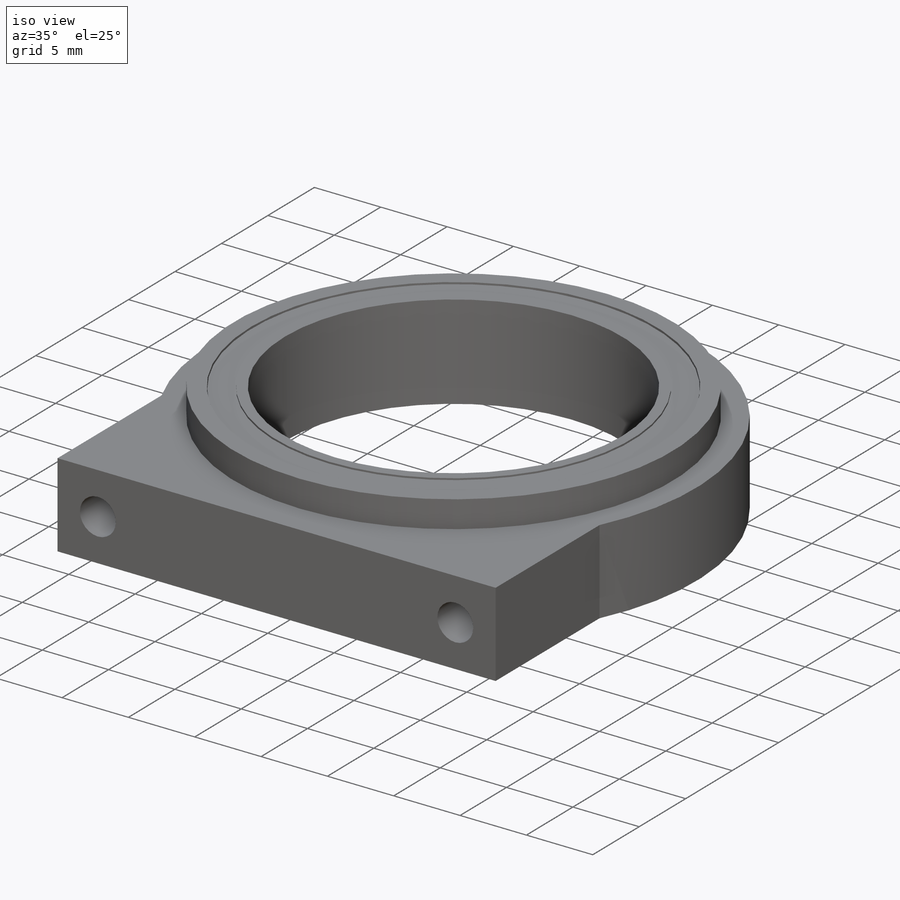
[diagram: iso view]
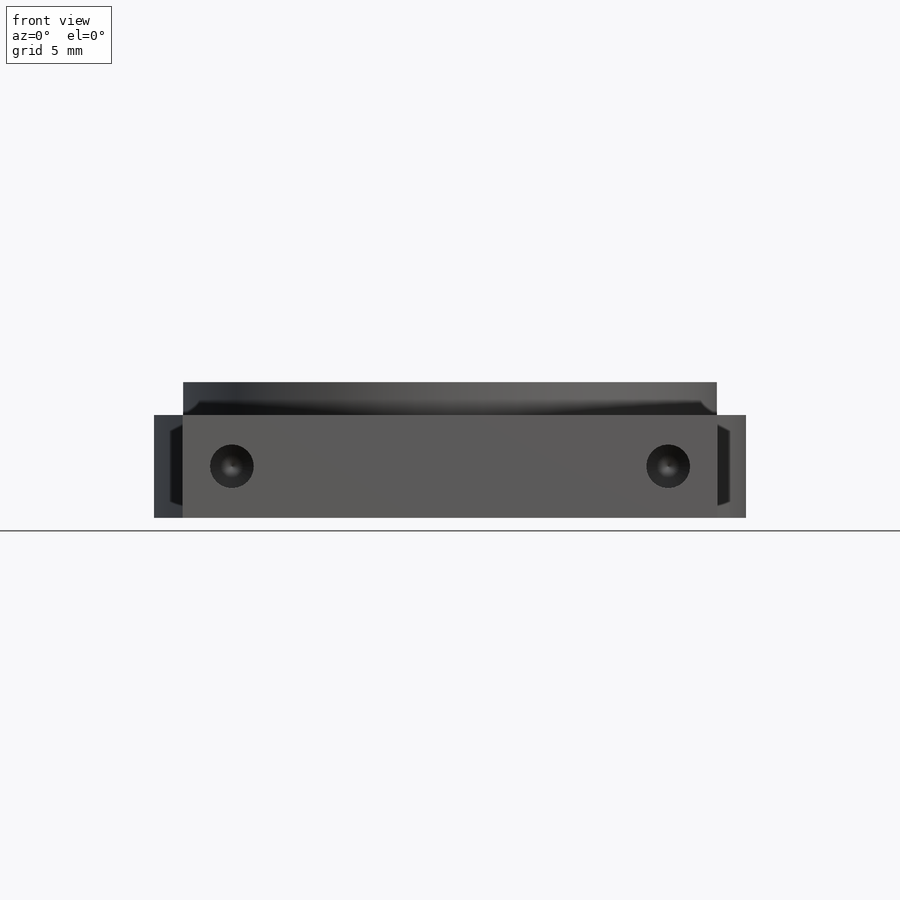
[diagram: front view]
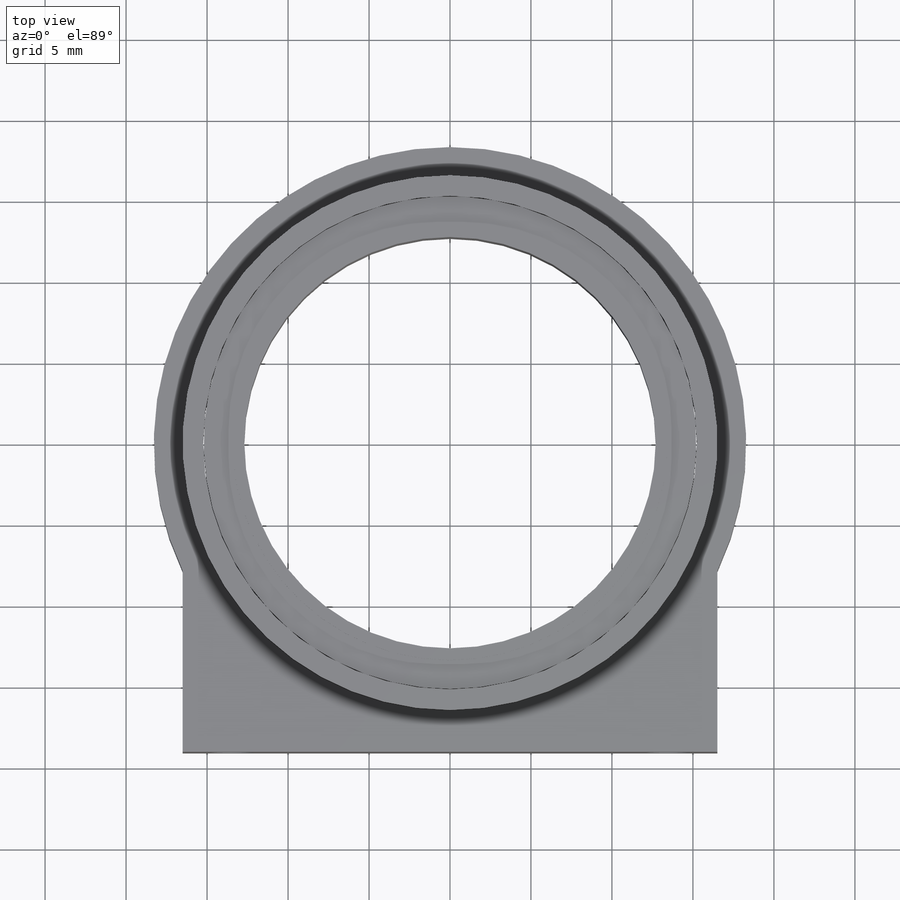
[diagram: top view]
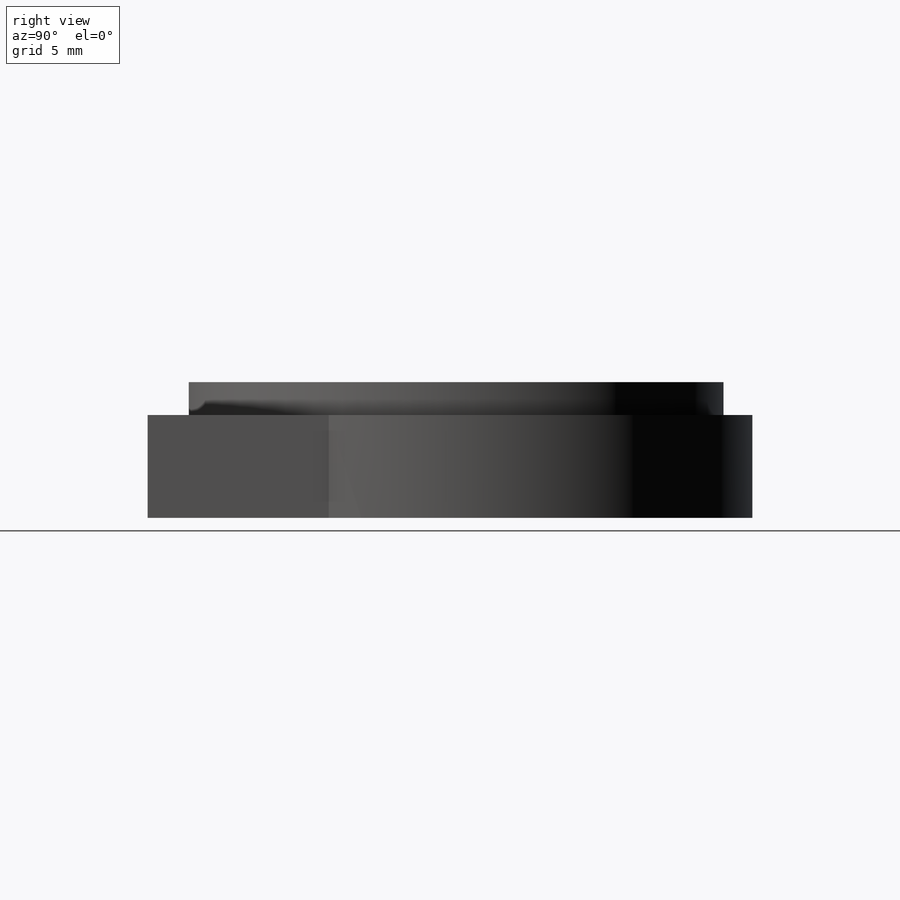
[diagram: right view]
SOLIDWORKS PART (.sldprt)
format: sldprt  version: not decoded by parser v0  size: 302,592 bytes
history: native  units: mm
features: sketch x8, extrude x4, thread x2, material x1, cut_extrude x1, hole x1 (+13 scaffold rows collapsed)
feature tree (30):
  scaffold x13  (default folders/planes/origin — collapsed)
  material  "1060 Alloy"
  sketch  "Sketch1"  dims[D1=36.576mm D5=31.75mm D2=37.338mm D3=33.02mm D4=16.51mm]
  extrude  "Boss-Extrude1"  Depth=6.35mm
  sketch  "Sketch2"  dims[D1=33.02mm]
  cut_extrude  "Cut-Extrude1"  Depth=5.08mm
  sketch  "Sketch3"  dims[D1=30.48mm]
  extrude  "Boss-Extrude2"  Depth=7.112mm
  sketch  "Sketch4"  dims[D1=1.778mm]
  extrude  "Boss-Extrude3"  Depth=5.08mm
  sketch  "Sketch5"  dims[D1=~12.453631mm]
  extrude  "Boss-Extrude4"  Depth=7.112mm
  sketch  "Sketch6"  dims[c1.D1=19.05mm c1.D2=19.05mm c1.D3=~16.114705mm c2.D3=90.0deg c2.D4=19.05mm c3.D4=45.0deg]
  hole  "#6-32 Tapped Hole1"  Diameter=2.7051mm Depth=6.35mm
  sketch  "Sketch8"
  sketch  "Sketch7"  dims[hole-wizard template sketch: 47 standard entries collapsed; hole parameters kept: c15.Tap Drill Depth=6.35mm c15.D3=~14.816244mm c15.Drill Angle=118.0deg]
  thread  "Hole Thread1"  Diameter=6.35mm  [1 undecoded]
  thread  "Hole Thread2"  Diameter=6.35mm  [1 undecoded]
decode coverage: 15 of 16 modeling features carry decoded parameters
note: ~ marks probable driven/reference dimensions
note: 2 parameter values undecoded
note: suppression state not decoded; provenance and decode notes live in map.json
